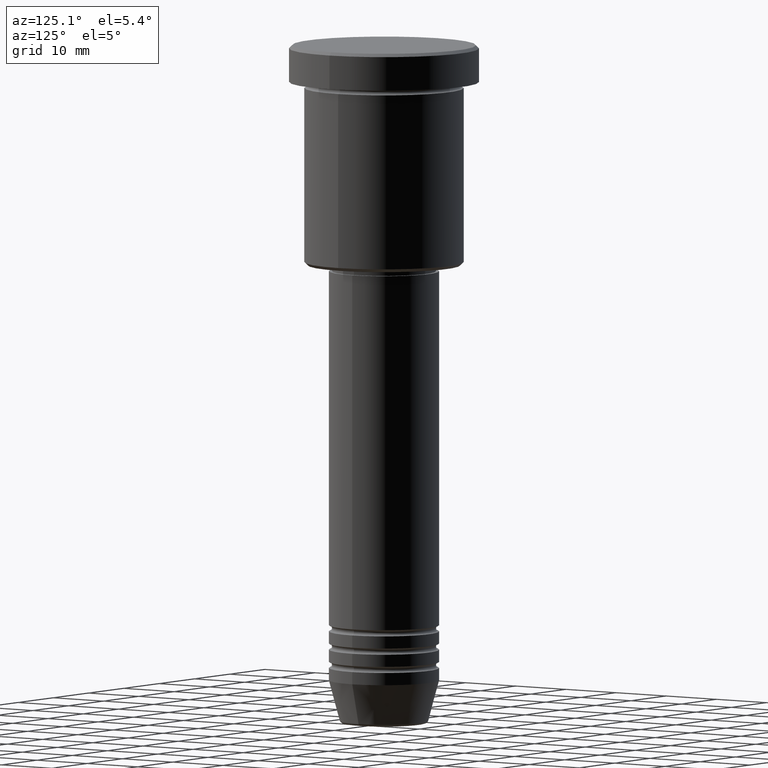
[diagram: clean part render]
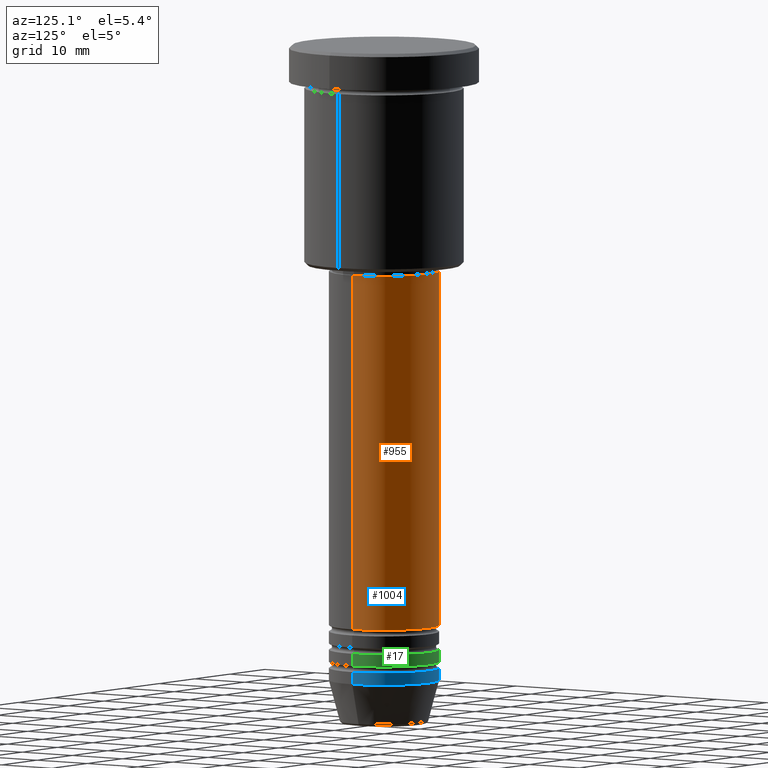
[diagram: same view with three faces highlighted in distinct colors, each labeled with its STEP entity id]
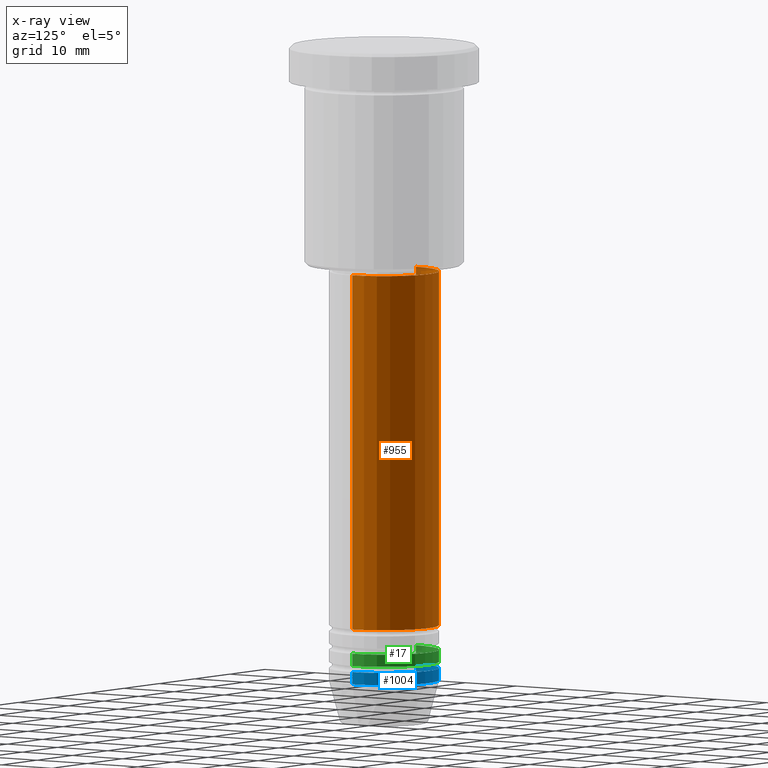
[diagram: x-ray of the same camera — body ghosted, the three highlighted faces saturated]
A machine part, auxiliary view with three faces highlighted in distinct colors.
The next image is the same camera in x-ray (body ghosted, the three faces saturated) — at least one of them is partly hidden behind the body in this view.
Their STEP definitions:

[orange] entity #955 — the highlighted cylindrical surface (partial cylindrical patch) has radius 9 mm, axis along (-0, -0, 1).
#12 = CIRCLE ( 'NONE', #974, 9.000000000000000000 ) ;
#35 = FACE_OUTER_BOUND ( 'NONE', #592, .T. ) ;
#199 = DIRECTION ( 'NONE',  ( 1.000000000000000000, 0.000000000000000000, 0.000000000000000000 ) ) ;
#203 = DIRECTION ( 'NONE',  ( -0.000000000000000000, -0.000000000000000000, 1.000000000000000000 ) ) ;
#210 = LINE ( 'NONE', #583, #705 ) ;
#249 = EDGE_CURVE ( 'NONE', #827, #965, #12, .T. ) ;
#263 = DIRECTION ( 'NONE',  ( -0.000000000000000000, -0.000000000000000000, 1.000000000000000000 ) ) ;
#293 = CARTESIAN_POINT ( 'NONE',  ( 0.000000000000000000, 0.000000000000000000, -37.00000000000001421 ) ) ;
#308 = CARTESIAN_POINT ( 'NONE',  ( 0.000000000000000000, 0.000000000000000000, 0.000000000000000000 ) ) ;
#319 = VERTEX_POINT ( 'NONE', #644 ) ;
#357 = EDGE_CURVE ( 'NONE', #402, #827, #920, .T. ) ;
#402 = VERTEX_POINT ( 'NONE', #825 ) ;
#424 = DIRECTION ( 'NONE',  ( -0.000000000000000000, -0.000000000000000000, 1.000000000000000000 ) ) ;
#478 = CARTESIAN_POINT ( 'NONE',  ( 9.000000000000000000, 0.000000000000000000, 0.000000000000000000 ) ) ;
#562 = DIRECTION ( 'NONE',  ( -0.000000000000000000, -0.000000000000000000, 1.000000000000000000 ) ) ;
#573 = CARTESIAN_POINT ( 'NONE',  ( -9.000000000000000000, 1.102182119232617714E-15, -37.00000000000001421 ) ) ;
#583 = CARTESIAN_POINT ( 'NONE',  ( -9.000000000000000000, 1.102182119232617714E-15, 0.000000000000000000 ) ) ;
#592 = EDGE_LOOP ( 'NONE', ( #1061, #814, #732, #977 ) ) ;
#644 = CARTESIAN_POINT ( 'NONE',  ( -9.000000000000000000, 1.102182119232617714E-15, -94.99999999999997158 ) ) ;
#705 = VECTOR ( 'NONE', #424, 1000.000000000000000 ) ;
#732 = ORIENTED_EDGE ( 'NONE', *, *, #249, .F. ) ;
#807 = CARTESIAN_POINT ( 'NONE',  ( 0.000000000000000000, 0.000000000000000000, -94.99999999999997158 ) ) ;
#814 = ORIENTED_EDGE ( 'NONE', *, *, #1019, .T. ) ;
#822 = VECTOR ( 'NONE', #562, 1000.000000000000000 ) ;
#825 = CARTESIAN_POINT ( 'NONE',  ( 9.000000000000000000, 0.000000000000000000, -94.99999999999997158 ) ) ;
#827 = VERTEX_POINT ( 'NONE', #834 ) ;
#834 = CARTESIAN_POINT ( 'NONE',  ( 9.000000000000000000, 0.000000000000000000, -37.00000000000001421 ) ) ;
#835 = AXIS2_PLACEMENT_3D ( 'NONE', #308, #203, #861 ) ;
#861 = DIRECTION ( 'NONE',  ( 1.000000000000000000, 0.000000000000000000, 0.000000000000000000 ) ) ;
#920 = LINE ( 'NONE', #478, #822 ) ;
#955 = ADVANCED_FACE ( 'NONE', ( #35 ), #1111, .T. ) ;
#965 = VERTEX_POINT ( 'NONE', #573 ) ;
#969 = CIRCLE ( 'NONE', #1135, 9.000000000000000000 ) ;
#974 = AXIS2_PLACEMENT_3D ( 'NONE', #293, #1014, #199 ) ;
#977 = ORIENTED_EDGE ( 'NONE', *, *, #357, .F. ) ;
#1014 = DIRECTION ( 'NONE',  ( -0.000000000000000000, -0.000000000000000000, 1.000000000000000000 ) ) ;
#1019 = EDGE_CURVE ( 'NONE', #319, #965, #210, .T. ) ;
#1061 = ORIENTED_EDGE ( 'NONE', *, *, #1174, .T. ) ;
#1111 = CYLINDRICAL_SURFACE ( 'NONE', #835, 9.000000000000000000 ) ;
#1135 = AXIS2_PLACEMENT_3D ( 'NONE', #807, #263, #1163 ) ;
#1163 = DIRECTION ( 'NONE',  ( 1.000000000000000000, 0.000000000000000000, 0.000000000000000000 ) ) ;
#1174 = EDGE_CURVE ( 'NONE', #402, #319, #969, .T. ) ;

[blue] entity #1004 — the highlighted cylindrical surface (partial cylindrical patch) has radius 9 mm, axis along (-0, -0, 1).
#21 = ORIENTED_EDGE ( 'NONE', *, *, #423, .F. ) ;
#23 = DIRECTION ( 'NONE',  ( -0.000000000000000000, -0.000000000000000000, 1.000000000000000000 ) ) ;
#38 = AXIS2_PLACEMENT_3D ( 'NONE', #812, #1167, #735 ) ;
#61 = EDGE_CURVE ( 'NONE', #857, #456, #958, .T. ) ;
#72 = AXIS2_PLACEMENT_3D ( 'NONE', #134, #574, #108 ) ;
#93 = ORIENTED_EDGE ( 'NONE', *, *, #97, .T. ) ;
#97 = EDGE_CURVE ( 'NONE', #456, #875, #690, .T. ) ;
#108 = DIRECTION ( 'NONE',  ( 1.000000000000000000, 0.000000000000000000, 0.000000000000000000 ) ) ;
#123 = CARTESIAN_POINT ( 'NONE',  ( -9.000000000000000000, 1.102182119232617714E-15, 0.000000000000000000 ) ) ;
#134 = CARTESIAN_POINT ( 'NONE',  ( 0.000000000000000000, 0.000000000000000000, -104.0000000000000142 ) ) ;
#177 = CARTESIAN_POINT ( 'NONE',  ( 9.000000000000000000, 0.000000000000000000, -104.0000000000000142 ) ) ;
#234 = DIRECTION ( 'NONE',  ( -0.000000000000000000, -0.000000000000000000, 1.000000000000000000 ) ) ;
#280 = EDGE_LOOP ( 'NONE', ( #988, #93, #1086, #21 ) ) ;
#352 = VECTOR ( 'NONE', #234, 1000.000000000000000 ) ;
#382 = LINE ( 'NONE', #743, #352 ) ;
#405 = AXIS2_PLACEMENT_3D ( 'NONE', #508, #23, #771 ) ;
#408 = FACE_OUTER_BOUND ( 'NONE', #280, .T. ) ;
#410 = DIRECTION ( 'NONE',  ( -0.000000000000000000, -0.000000000000000000, 1.000000000000000000 ) ) ;
#423 = EDGE_CURVE ( 'NONE', #857, #758, #382, .T. ) ;
#456 = VERTEX_POINT ( 'NONE', #954 ) ;
#508 = CARTESIAN_POINT ( 'NONE',  ( 0.000000000000000000, 0.000000000000000000, 0.000000000000000000 ) ) ;
#547 = CARTESIAN_POINT ( 'NONE',  ( -9.000000000000000000, 1.102182119232617714E-15, -102.0000000000000142 ) ) ;
#574 = DIRECTION ( 'NONE',  ( -0.000000000000000000, -0.000000000000000000, 1.000000000000000000 ) ) ;
#690 = LINE ( 'NONE', #123, #785 ) ;
#735 = DIRECTION ( 'NONE',  ( 1.000000000000000000, 0.000000000000000000, 0.000000000000000000 ) ) ;
#743 = CARTESIAN_POINT ( 'NONE',  ( 9.000000000000000000, 0.000000000000000000, 0.000000000000000000 ) ) ;
#758 = VERTEX_POINT ( 'NONE', #1073 ) ;
#771 = DIRECTION ( 'NONE',  ( 1.000000000000000000, 0.000000000000000000, 0.000000000000000000 ) ) ;
#785 = VECTOR ( 'NONE', #410, 1000.000000000000000 ) ;
#812 = CARTESIAN_POINT ( 'NONE',  ( 0.000000000000000000, 0.000000000000000000, -102.0000000000000142 ) ) ;
#857 = VERTEX_POINT ( 'NONE', #177 ) ;
#870 = CYLINDRICAL_SURFACE ( 'NONE', #405, 9.000000000000000000 ) ;
#875 = VERTEX_POINT ( 'NONE', #547 ) ;
#893 = EDGE_CURVE ( 'NONE', #758, #875, #906, .T. ) ;
#906 = CIRCLE ( 'NONE', #38, 9.000000000000000000 ) ;
#954 = CARTESIAN_POINT ( 'NONE',  ( -9.000000000000000000, 1.102182119232617714E-15, -104.0000000000000142 ) ) ;
#958 = CIRCLE ( 'NONE', #72, 9.000000000000000000 ) ;
#988 = ORIENTED_EDGE ( 'NONE', *, *, #61, .T. ) ;
#1004 = ADVANCED_FACE ( 'NONE', ( #408 ), #870, .T. ) ;
#1073 = CARTESIAN_POINT ( 'NONE',  ( 9.000000000000000000, 0.000000000000000000, -102.0000000000000142 ) ) ;
#1086 = ORIENTED_EDGE ( 'NONE', *, *, #893, .F. ) ;
#1167 = DIRECTION ( 'NONE',  ( -0.000000000000000000, -0.000000000000000000, 1.000000000000000000 ) ) ;

[green] entity #17 — the highlighted cylindrical surface (partial cylindrical patch) has radius 9 mm, axis along (-0, -0, 1).
#17 = ADVANCED_FACE ( 'NONE', ( #751 ), #939, .T. ) ;
#20 = CARTESIAN_POINT ( 'NONE',  ( 9.000000000000000000, 0.000000000000000000, 0.000000000000000000 ) ) ;
#30 = CARTESIAN_POINT ( 'NONE',  ( -9.000000000000000000, 1.102182119232617714E-15, -98.99999999999998579 ) ) ;
#112 = CARTESIAN_POINT ( 'NONE',  ( 0.000000000000000000, 0.000000000000000000, 0.000000000000000000 ) ) ;
#120 = ORIENTED_EDGE ( 'NONE', *, *, #551, .T. ) ;
#175 = EDGE_CURVE ( 'NONE', #878, #483, #1096, .T. ) ;
#204 = LINE ( 'NONE', #20, #745 ) ;
#206 = EDGE_CURVE ( 'NONE', #261, #878, #204, .T. ) ;
#261 = VERTEX_POINT ( 'NONE', #463 ) ;
#311 = DIRECTION ( 'NONE',  ( 1.000000000000000000, 0.000000000000000000, 0.000000000000000000 ) ) ;
#388 = AXIS2_PLACEMENT_3D ( 'NONE', #1091, #659, #842 ) ;
#412 = AXIS2_PLACEMENT_3D ( 'NONE', #112, #1116, #311 ) ;
#463 = CARTESIAN_POINT ( 'NONE',  ( 9.000000000000000000, 0.000000000000000000, -100.9999999999999716 ) ) ;
#482 = EDGE_CURVE ( 'NONE', #261, #910, #507, .T. ) ;
#483 = VERTEX_POINT ( 'NONE', #30 ) ;
#500 = ORIENTED_EDGE ( 'NONE', *, *, #482, .T. ) ;
#507 = CIRCLE ( 'NONE', #787, 9.000000000000000000 ) ;
#551 = EDGE_CURVE ( 'NONE', #910, #483, #1123, .T. ) ;
#578 = DIRECTION ( 'NONE',  ( -0.000000000000000000, -0.000000000000000000, 1.000000000000000000 ) ) ;
#659 = DIRECTION ( 'NONE',  ( -0.000000000000000000, -0.000000000000000000, 1.000000000000000000 ) ) ;
#665 = DIRECTION ( 'NONE',  ( -0.000000000000000000, -0.000000000000000000, 1.000000000000000000 ) ) ;
#679 = DIRECTION ( 'NONE',  ( -0.000000000000000000, -0.000000000000000000, 1.000000000000000000 ) ) ;
#688 = ORIENTED_EDGE ( 'NONE', *, *, #206, .F. ) ;
#745 = VECTOR ( 'NONE', #578, 1000.000000000000000 ) ;
#751 = FACE_OUTER_BOUND ( 'NONE', #1132, .T. ) ;
#759 = CARTESIAN_POINT ( 'NONE',  ( -9.000000000000000000, 1.102182119232617714E-15, 0.000000000000000000 ) ) ;
#787 = AXIS2_PLACEMENT_3D ( 'NONE', #1022, #665, #1046 ) ;
#842 = DIRECTION ( 'NONE',  ( 1.000000000000000000, 0.000000000000000000, 0.000000000000000000 ) ) ;
#878 = VERTEX_POINT ( 'NONE', #907 ) ;
#904 = VECTOR ( 'NONE', #679, 1000.000000000000000 ) ;
#907 = CARTESIAN_POINT ( 'NONE',  ( 9.000000000000000000, 0.000000000000000000, -98.99999999999998579 ) ) ;
#910 = VERTEX_POINT ( 'NONE', #912 ) ;
#912 = CARTESIAN_POINT ( 'NONE',  ( -9.000000000000000000, 1.102182119232617714E-15, -100.9999999999999716 ) ) ;
#939 = CYLINDRICAL_SURFACE ( 'NONE', #412, 9.000000000000000000 ) ;
#1022 = CARTESIAN_POINT ( 'NONE',  ( 0.000000000000000000, 0.000000000000000000, -100.9999999999999716 ) ) ;
#1046 = DIRECTION ( 'NONE',  ( 1.000000000000000000, 0.000000000000000000, 0.000000000000000000 ) ) ;
#1088 = ORIENTED_EDGE ( 'NONE', *, *, #175, .F. ) ;
#1091 = CARTESIAN_POINT ( 'NONE',  ( 0.000000000000000000, 0.000000000000000000, -98.99999999999998579 ) ) ;
#1096 = CIRCLE ( 'NONE', #388, 9.000000000000000000 ) ;
#1116 = DIRECTION ( 'NONE',  ( -0.000000000000000000, -0.000000000000000000, 1.000000000000000000 ) ) ;
#1123 = LINE ( 'NONE', #759, #904 ) ;
#1132 = EDGE_LOOP ( 'NONE', ( #500, #120, #1088, #688 ) ) ;